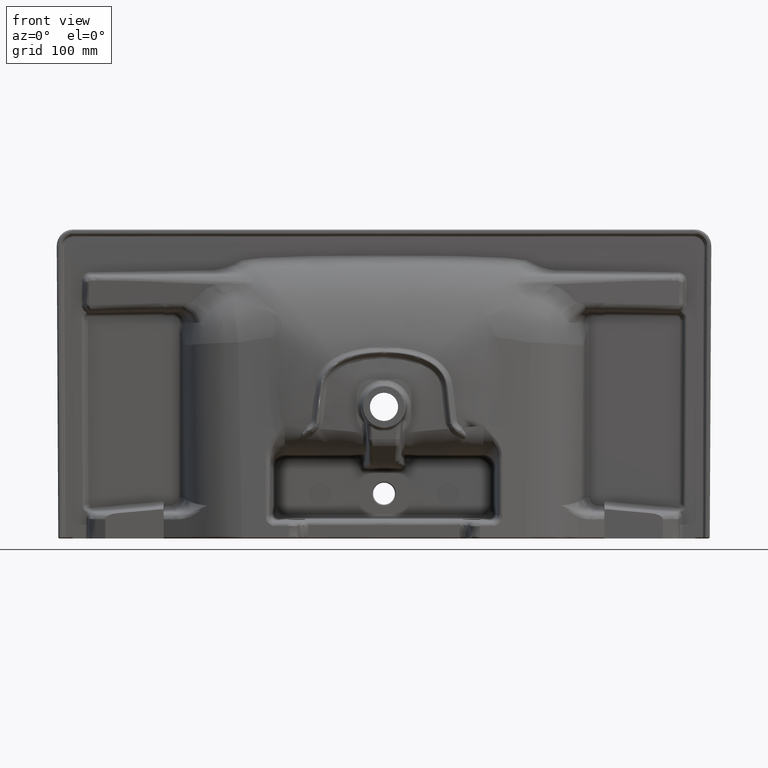
[diagram: clean part render]
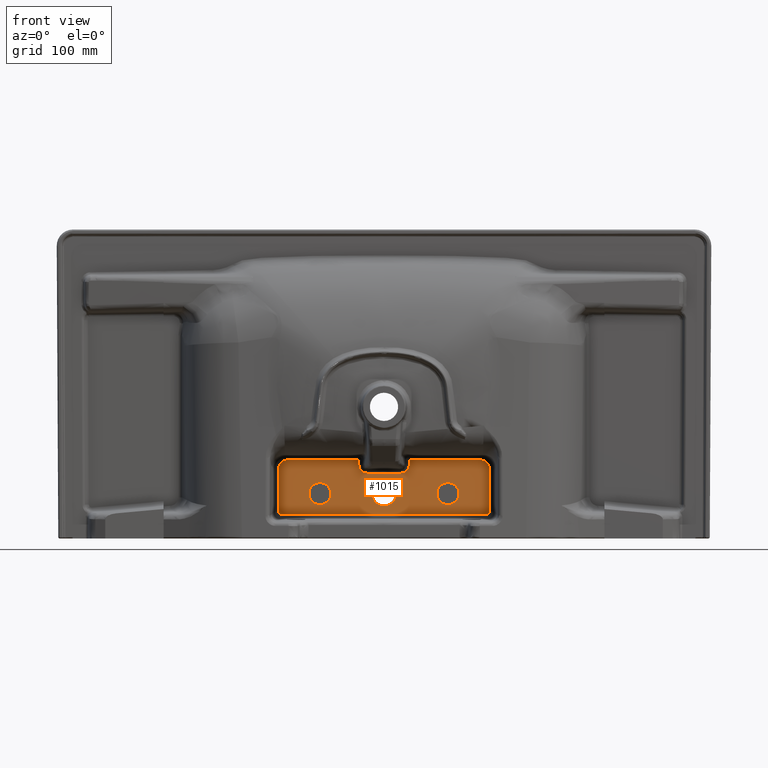
[diagram: same view with one face highlighted and labeled with its STEP entity id]
A machine part, front view. The second image highlights one B-rep face of the part: STEP entity #1015.
In plain terms, the highlighted planar face has unit normal (0, 1, 0).
Its self-contained STEP definition (entity closure, byte-faithful):
#605=PLANE('',#8690);
#644=ELLIPSE('',#8684,4.02517784510999,4.);
#645=ELLIPSE('',#8685,14.0731897168638,14.);
#646=ELLIPSE('',#8686,14.0731897168638,14.);
#647=ELLIPSE('',#8687,4.02517784510999,4.);
#699=FACE_BOUND('',#2191,.T.);
#700=FACE_BOUND('',#2192,.T.);
#701=FACE_BOUND('',#2193,.T.);
#702=FACE_BOUND('',#2194,.T.);
#723=CIRCLE('',#8666,19.5);
#727=CIRCLE('',#8688,17.5);
#728=CIRCLE('',#8689,17.5);
#1015=ADVANCED_FACE('',(#699,#700,#701,#702),#605,.F.);
#2191=EDGE_LOOP('',(#3796));
#2192=EDGE_LOOP('',(#3797,#3798,#3799,#3800,#3801,#3802,#3803,#3804,#3805,
#3806,#3807,#3808,#3809,#3810,#3811));
#2193=EDGE_LOOP('',(#3812));
#2194=EDGE_LOOP('',(#3813));
#2812=B_SPLINE_CURVE_WITH_KNOTS('',3,(#10907,#10908,#10909,#10910),
 .UNSPECIFIED.,.F.,.F.,(4,4),(0.,1.),.UNSPECIFIED.);
#2813=B_SPLINE_CURVE_WITH_KNOTS('',3,(#10912,#10913,#10914,#10915,#10916,
#10917),.UNSPECIFIED.,.F.,.F.,(4,2,4),(0.,0.5,1.),.UNSPECIFIED.);
#2814=B_SPLINE_CURVE_WITH_KNOTS('',3,(#10919,#10920,#10921,#10922,#10923,
#10924,#10925),.UNSPECIFIED.,.F.,.F.,(4,3,4),(0.,0.443726968205054,1.),
 .UNSPECIFIED.);
#2815=B_SPLINE_CURVE_WITH_KNOTS('',3,(#10927,#10928,#10929,#10930,#10931,
#10932,#10933),.UNSPECIFIED.,.F.,.F.,(4,3,4),(0.,0.443726968205054,1.),
 .UNSPECIFIED.);
#2816=B_SPLINE_CURVE_WITH_KNOTS('',3,(#10935,#10936,#10937,#10938,#10939,
#10940),.UNSPECIFIED.,.F.,.F.,(4,2,4),(0.,0.5,1.),.UNSPECIFIED.);
#2817=B_SPLINE_CURVE_WITH_KNOTS('',3,(#10942,#10943,#10944,#10945),
 .UNSPECIFIED.,.F.,.F.,(4,4),(0.,1.),.UNSPECIFIED.);
#3796=ORIENTED_EDGE('',*,*,#7169,.T.);
#3797=ORIENTED_EDGE('',*,*,#7241,.T.);
#3798=ORIENTED_EDGE('',*,*,#7242,.F.);
#3799=ORIENTED_EDGE('',*,*,#7243,.F.);
#3800=ORIENTED_EDGE('',*,*,#7244,.F.);
#3801=ORIENTED_EDGE('',*,*,#7245,.F.);
#3802=ORIENTED_EDGE('',*,*,#7246,.F.);
#3803=ORIENTED_EDGE('',*,*,#7247,.F.);
#3804=ORIENTED_EDGE('',*,*,#7248,.F.);
#3805=ORIENTED_EDGE('',*,*,#7249,.T.);
#3806=ORIENTED_EDGE('',*,*,#7250,.T.);
#3807=ORIENTED_EDGE('',*,*,#7251,.T.);
#3808=ORIENTED_EDGE('',*,*,#7252,.T.);
#3809=ORIENTED_EDGE('',*,*,#7253,.T.);
#3810=ORIENTED_EDGE('',*,*,#7254,.T.);
#3811=ORIENTED_EDGE('',*,*,#7255,.T.);
#3812=ORIENTED_EDGE('',*,*,#7256,.F.);
#3813=ORIENTED_EDGE('',*,*,#7257,.T.);
#6389=VERTEX_POINT('',#9991);
#6460=VERTEX_POINT('',#10897);
#6461=VERTEX_POINT('',#10898);
#6462=VERTEX_POINT('',#10900);
#6463=VERTEX_POINT('',#10902);
#6464=VERTEX_POINT('',#10904);
#6465=VERTEX_POINT('',#10906);
#6466=VERTEX_POINT('',#10911);
#6467=VERTEX_POINT('',#10918);
#6468=VERTEX_POINT('',#10926);
#6469=VERTEX_POINT('',#10934);
#6470=VERTEX_POINT('',#10941);
#6471=VERTEX_POINT('',#10946);
#6472=VERTEX_POINT('',#10948);
#6473=VERTEX_POINT('',#10950);
#6474=VERTEX_POINT('',#10952);
#6475=VERTEX_POINT('',#10955);
#6476=VERTEX_POINT('',#10957);
#7169=EDGE_CURVE('',#6389,#6389,#723,.T.);
#7241=EDGE_CURVE('',#6460,#6461,#8513,.T.);
#7242=EDGE_CURVE('',#6462,#6461,#644,.T.);
#7243=EDGE_CURVE('',#6463,#6462,#8514,.T.);
#7244=EDGE_CURVE('',#6464,#6463,#645,.T.);
#7245=EDGE_CURVE('',#6465,#6464,#8515,.T.);
#7246=EDGE_CURVE('',#6466,#6465,#2812,.T.);
#7247=EDGE_CURVE('',#6467,#6466,#2813,.T.);
#7248=EDGE_CURVE('',#6468,#6467,#2814,.T.);
#7249=EDGE_CURVE('',#6468,#6469,#2815,.T.);
#7250=EDGE_CURVE('',#6469,#6470,#2816,.T.);
#7251=EDGE_CURVE('',#6470,#6471,#2817,.T.);
#7252=EDGE_CURVE('',#6471,#6472,#8516,.T.);
#7253=EDGE_CURVE('',#6472,#6473,#646,.T.);
#7254=EDGE_CURVE('',#6473,#6474,#8517,.T.);
#7255=EDGE_CURVE('',#6474,#6460,#647,.T.);
#7256=EDGE_CURVE('',#6475,#6475,#727,.T.);
#7257=EDGE_CURVE('',#6476,#6476,#728,.T.);
#8513=LINE('',#10896,#8589);
#8514=LINE('',#10901,#8590);
#8515=LINE('',#10905,#8591);
#8516=LINE('',#10947,#8592);
#8517=LINE('',#10951,#8593);
#8589=VECTOR('',#9133,1.);
#8590=VECTOR('',#9136,1.);
#8591=VECTOR('',#9139,1.);
#8592=VECTOR('',#9140,1.);
#8593=VECTOR('',#9143,1.);
#8666=AXIS2_PLACEMENT_3D('',#9990,#9083,#9084);
#8684=AXIS2_PLACEMENT_3D('',#10899,#9134,#9135);
#8685=AXIS2_PLACEMENT_3D('',#10903,#9137,#9138);
#8686=AXIS2_PLACEMENT_3D('',#10949,#9141,#9142);
#8687=AXIS2_PLACEMENT_3D('',#10953,#9144,#9145);
#8688=AXIS2_PLACEMENT_3D('',#10954,#9146,#9147);
#8689=AXIS2_PLACEMENT_3D('',#10956,#9148,#9149);
#8690=AXIS2_PLACEMENT_3D('',#10958,#9150,#9151);
#9083=DIRECTION('',(0.,1.,0.));
#9084=DIRECTION('',(0.,0.,0.999999999999999));
#9133=DIRECTION('',(1.,0.,-1.25372683562625E-015));
#9134=DIRECTION('',(0.,1.,0.));
#9135=DIRECTION('',(0.782816076125234,0.,-0.622253156649199));
#9136=DIRECTION('',(0.000109422090838042,0.,-0.999999994013403));
#9137=DIRECTION('',(0.,1.,0.));
#9138=DIRECTION('',(0.859067695284314,0.,0.511861988155887));
#9139=DIRECTION('',(1.,0.,1.0707705283783E-018));
#9140=DIRECTION('',(-1.,0.,1.0707705283783E-018));
#9141=DIRECTION('',(0.,-1.,0.));
#9142=DIRECTION('',(-0.859067695284314,0.,0.511861988155887));
#9143=DIRECTION('',(-0.000109422090838042,0.,-0.999999994013403));
#9144=DIRECTION('',(0.,-1.,0.));
#9145=DIRECTION('',(-0.782816076125234,0.,-0.622253156649199));
#9146=DIRECTION('',(0.,-1.,0.));
#9147=DIRECTION('',(0.,0.,1.));
#9148=DIRECTION('',(0.,1.,0.));
#9149=DIRECTION('',(0.,0.,1.));
#9150=DIRECTION('',(0.,1.,0.));
#9151=DIRECTION('',(0.,0.,1.));
#9990=CARTESIAN_POINT('',(-4.,-41.1168494463141,-166.819183778549));
#9991=CARTESIAN_POINT('',(-4.,-41.1168494463141,-147.319183778549));
#10896=CARTESIAN_POINT('',(661.189391889384,-41.1168494463141,-199.441446406264));
#10897=CARTESIAN_POINT('',(-167.619206883486,-41.1168494463141,-199.441446406263));
#10898=CARTESIAN_POINT('',(159.619206883486,-41.1168494463141,-199.441446406263));
#10899=CARTESIAN_POINT('',(159.5946608758,-41.1168494463141,-195.431678813939));
#10900=CARTESIAN_POINT('',(163.610108590291,-41.1168494463141,-195.455751978925));
#10901=CARTESIAN_POINT('',(163.618330316247,-41.1168494463141,-270.593467260275));
#10902=CARTESIAN_POINT('',(163.60262806208,-41.1168494463141,-127.091785352931));
#10903=CARTESIAN_POINT('',(149.548577482651,-41.1168494463141,-127.15760214678));
#10904=CARTESIAN_POINT('',(149.613023853413,-41.1168494463141,-113.138389302809));
#10905=CARTESIAN_POINT('',(-669.189391889384,-41.1168494463141,-113.138389302809));
#10906=CARTESIAN_POINT('',(36.8613477551231,-41.1168494463141,-113.138389302809));
#10907=CARTESIAN_POINT('',(35.9787909114058,-41.1168494463141,-122.464213705889));
#10908=CARTESIAN_POINT('',(36.2729765259782,-41.1168494463141,-119.355605571529));
#10909=CARTESIAN_POINT('',(36.5671621405507,-41.1168494463141,-116.246997437169));
#10910=CARTESIAN_POINT('',(36.8613477551231,-41.1168494463141,-113.138389302809));
#10911=CARTESIAN_POINT('',(35.9787909114058,-41.1168494463141,-122.464213705889));
#10912=CARTESIAN_POINT('',(23.0436571582338,-41.1168494463141,-134.196921150834));
#10913=CARTESIAN_POINT('',(26.2651809605394,-41.1168494463141,-134.196921150834));
#10914=CARTESIAN_POINT('',(29.4136227165631,-41.1168494463141,-132.980465315767));
#10915=CARTESIAN_POINT('',(34.1506840480446,-41.116849446314,-128.69232562189));
#10916=CARTESIAN_POINT('',(35.6752423288689,-41.116849446314,-125.671758691455));
#10917=CARTESIAN_POINT('',(35.9787909114058,-41.1168494463141,-122.464213705889));
#10918=CARTESIAN_POINT('',(23.0436571582338,-41.1168494463141,-134.196921150834));
#10919=CARTESIAN_POINT('',(-3.99999999999999,-41.1168494463141,-134.196921150834));
#10920=CARTESIAN_POINT('',(4.33680868994202E-015,-41.1168494463141,-134.196921150834));
#10921=CARTESIAN_POINT('',(4.,-41.1168494463141,-134.196921150834));
#10922=CARTESIAN_POINT('',(8.,-41.1168494463141,-134.196921150834));
#10923=CARTESIAN_POINT('',(13.0145523860779,-41.1168494463141,-134.196921150834));
#10924=CARTESIAN_POINT('',(18.0291047721559,-41.1168494463141,-134.196921150834));
#10925=CARTESIAN_POINT('',(23.0436571582338,-41.1168494463141,-134.196921150834));
#10926=CARTESIAN_POINT('',(-3.99999999999999,-41.1168494463141,-134.196921150834));
#10927=CARTESIAN_POINT('',(-3.99999999999999,-41.1168494463141,-134.196921150834));
#10928=CARTESIAN_POINT('',(-8.,-41.1168494463141,-134.196921150834));
#10929=CARTESIAN_POINT('',(-12.,-41.1168494463141,-134.196921150834));
#10930=CARTESIAN_POINT('',(-16.,-41.1168494463141,-134.196921150834));
#10931=CARTESIAN_POINT('',(-21.0145523860779,-41.1168494463141,-134.196921150834));
#10932=CARTESIAN_POINT('',(-26.0291047721559,-41.1168494463141,-134.196921150834));
#10933=CARTESIAN_POINT('',(-31.0436571582338,-41.1168494463141,-134.196921150834));
#10934=CARTESIAN_POINT('',(-31.0436571582338,-41.1168494463141,-134.196921150834));
#10935=CARTESIAN_POINT('',(-31.0436571582338,-41.1168494463141,-134.196921150834));
#10936=CARTESIAN_POINT('',(-34.2651809605394,-41.1168494463141,-134.196921150834));
#10937=CARTESIAN_POINT('',(-37.4136227165631,-41.1168494463141,-132.980465315767));
#10938=CARTESIAN_POINT('',(-42.1506840480446,-41.116849446314,-128.69232562189));
#10939=CARTESIAN_POINT('',(-43.6752423288689,-41.1168494463141,-125.671758691455));
#10940=CARTESIAN_POINT('',(-43.9787909114058,-41.1168494463141,-122.464213705889));
#10941=CARTESIAN_POINT('',(-43.9787909114058,-41.1168494463141,-122.464213705889));
#10942=CARTESIAN_POINT('',(-43.9787909114058,-41.1168494463141,-122.464213705889));
#10943=CARTESIAN_POINT('',(-44.2729765259782,-41.1168494463141,-119.355605571529));
#10944=CARTESIAN_POINT('',(-44.5671621405507,-41.1168494463141,-116.246997437169));
#10945=CARTESIAN_POINT('',(-44.8613477551231,-41.1168494463141,-113.138389302809));
#10946=CARTESIAN_POINT('',(-44.8613477551231,-41.1168494463141,-113.138389302809));
#10947=CARTESIAN_POINT('',(661.189391889384,-41.1168494463141,-113.138389302809));
#10948=CARTESIAN_POINT('',(-157.613023853413,-41.1168494463141,-113.138389302809));
#10949=CARTESIAN_POINT('',(-157.548577482651,-41.1168494463141,-127.15760214678));
#10950=CARTESIAN_POINT('',(-171.60262806208,-41.1168494463141,-127.091785352931));
#10951=CARTESIAN_POINT('',(-171.618330316247,-41.1168494463141,-270.593467260275));
#10952=CARTESIAN_POINT('',(-171.610108590291,-41.1168494463141,-195.455751978925));
#10953=CARTESIAN_POINT('',(-167.5946608758,-41.1168494463141,-195.431678813939));
#10954=CARTESIAN_POINT('',(-106.,-41.116849446314,-166.819183778549));
#10955=CARTESIAN_POINT('',(-106.,-41.116849446314,-149.319183778549));
#10956=CARTESIAN_POINT('',(98.,-41.116849446314,-166.819183778549));
#10957=CARTESIAN_POINT('',(98.,-41.116849446314,-149.319183778549));
#10958=CARTESIAN_POINT('',(661.189391889384,-41.1168494463141,-270.68459482305));